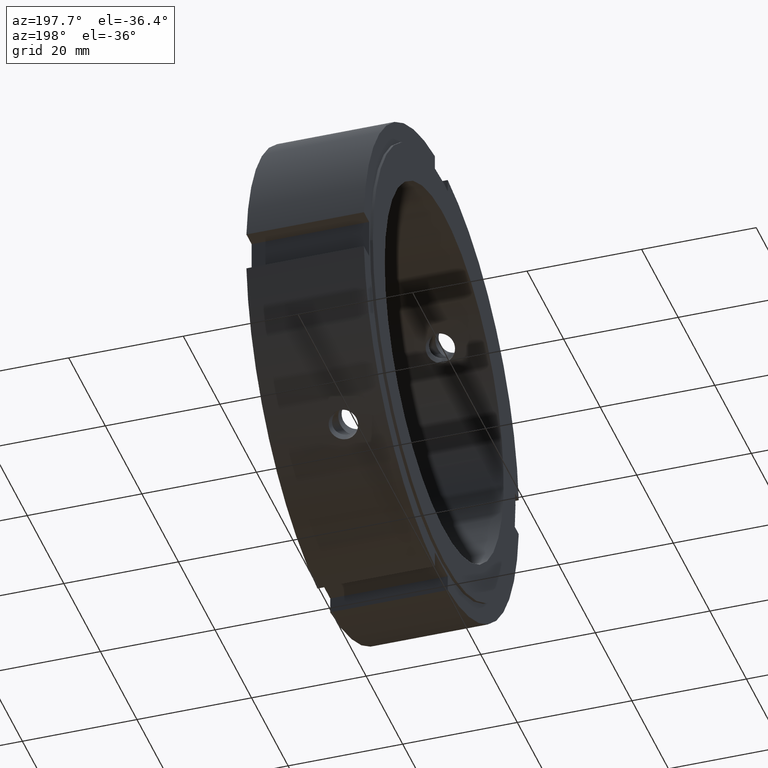
[diagram: clean part render]
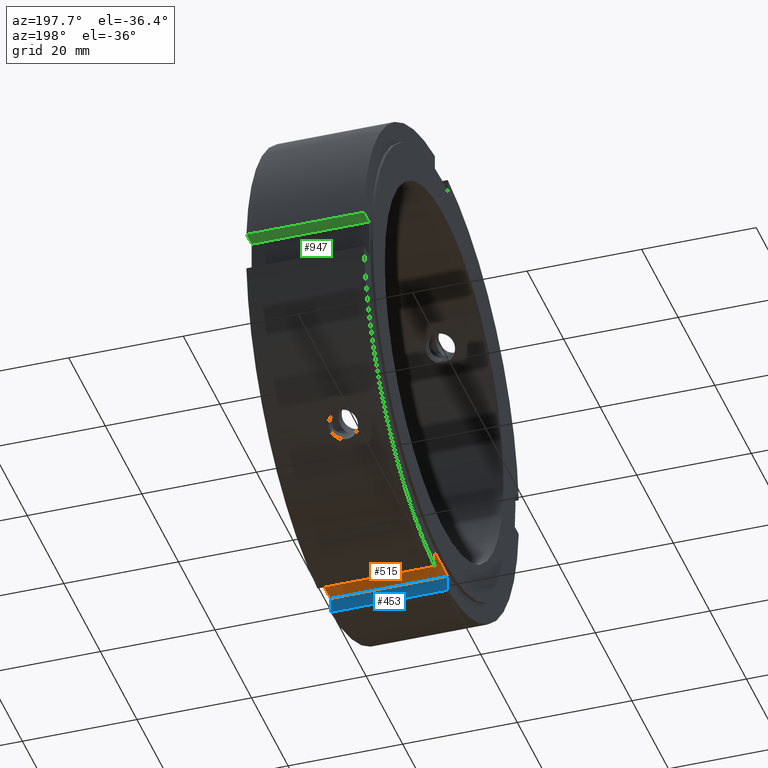
[diagram: same view with three faces highlighted in distinct colors, each labeled with its STEP entity id]
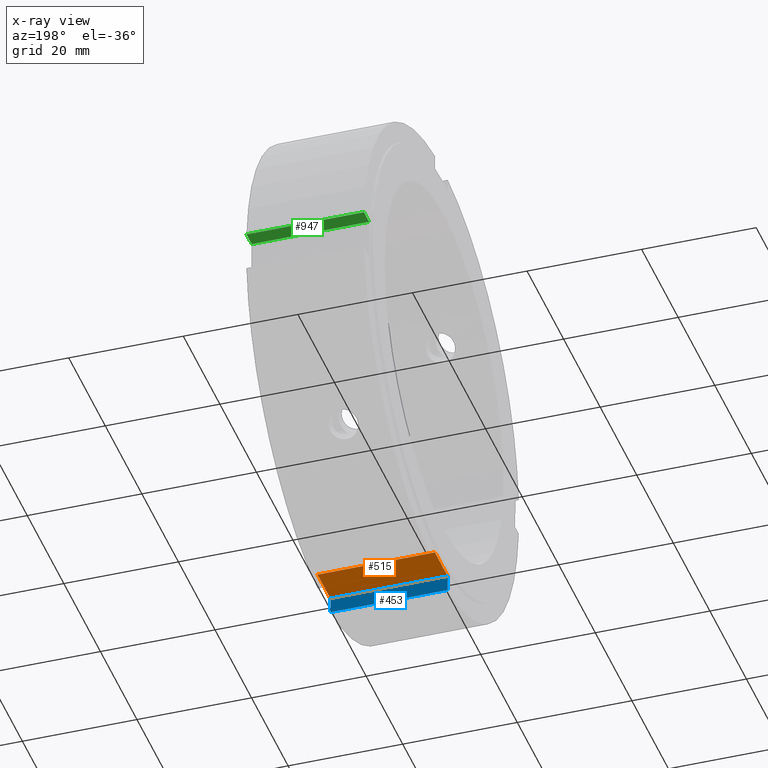
[diagram: x-ray of the same camera — body ghosted, the three highlighted faces saturated]
A machine part, auxiliary view with three faces highlighted in distinct colors.
The next image is the same camera in x-ray (body ghosted, the three faces saturated) — at least one of them is partly hidden behind the body in this view.
Their STEP definitions:

[orange] entity #515 — the highlighted planar face has unit normal (0, 0, 1).
#419=CARTESIAN_POINT('',(0.499999999999989,-3.500000000000006,-39.5));
#420=VERTEX_POINT('',#419);
#429=CARTESIAN_POINT('',(20.999999999999986,-3.500000000000006,-39.5));
#430=VERTEX_POINT('',#429);
#431=CARTESIAN_POINT('',(20.999999999999986,-3.500000000000006,-39.5));
#432=DIRECTION('',(-1.0,0.0,0.0));
#433=VECTOR('',#432,20.5);
#434=LINE('',#431,#433);
#435=EDGE_CURVE('',#430,#420,#434,.T.);
#461=CARTESIAN_POINT('',(0.499999999999989,3.499999999999992,-39.5));
#462=VERTEX_POINT('',#461);
#477=CARTESIAN_POINT('',(20.999999999999986,3.499999999999992,-39.5));
#478=VERTEX_POINT('',#477);
#485=CARTESIAN_POINT('',(20.999999999999986,3.499999999999992,-39.5));
#486=DIRECTION('',(-1.0,0.0,0.0));
#487=VECTOR('',#486,20.5);
#488=LINE('',#485,#487);
#489=EDGE_CURVE('',#478,#462,#488,.T.);
#494=CARTESIAN_POINT('',(20.999999999999986,3.499999999999992,-39.5));
#495=DIRECTION('',(0.0,0.0,1.0));
#496=DIRECTION('',(0.0,-1.0,0.0));
#497=AXIS2_PLACEMENT_3D('',#494,#495,#496);
#498=PLANE('',#497);
#499=CARTESIAN_POINT('',(0.499999999999989,3.499999999999989,-39.5));
#500=DIRECTION('',(0.0,-1.0,0.0));
#501=VECTOR('',#500,6.999999999999996);
#502=LINE('',#499,#501);
#503=EDGE_CURVE('',#462,#420,#502,.T.);
#504=ORIENTED_EDGE('',*,*,#503,.F.);
#505=ORIENTED_EDGE('',*,*,#489,.F.);
#506=CARTESIAN_POINT('',(20.999999999999986,-3.500000000000004,-39.499999999999993));
#507=DIRECTION('',(0.0,1.0,0.0));
#508=VECTOR('',#507,6.999999999999996);
#509=LINE('',#506,#508);
#510=EDGE_CURVE('',#430,#478,#509,.T.);
#511=ORIENTED_EDGE('',*,*,#510,.F.);
#512=ORIENTED_EDGE('',*,*,#435,.T.);
#513=EDGE_LOOP('',(#504,#505,#511,#512));
#514=FACE_OUTER_BOUND('',#513,.T.);
#515=ADVANCED_FACE('',(#514),#498,.F.);

[blue] entity #453 — the highlighted planar face has unit normal (0, -1, 0).
#414=CARTESIAN_POINT('',(20.999999999999986,-3.500000000000006,-39.5));
#415=DIRECTION('',(0.0,-1.0,0.0));
#416=DIRECTION('',(-1.0,0.0,0.0));
#417=AXIS2_PLACEMENT_3D('',#414,#415,#416);
#418=PLANE('',#417);
#419=CARTESIAN_POINT('',(0.499999999999989,-3.500000000000006,-39.5));
#420=VERTEX_POINT('',#419);
#421=CARTESIAN_POINT('',(0.499999999999989,-3.500000000000006,-42.355637169094742));
#422=VERTEX_POINT('',#421);
#423=CARTESIAN_POINT('',(0.499999999999989,-3.500000000000005,-39.5));
#424=DIRECTION('',(0.0,0.0,-1.0));
#425=VECTOR('',#424,2.855637169094742);
#426=LINE('',#423,#425);
#427=EDGE_CURVE('',#420,#422,#426,.T.);
#428=ORIENTED_EDGE('',*,*,#427,.F.);
#429=CARTESIAN_POINT('',(20.999999999999986,-3.500000000000006,-39.5));
#430=VERTEX_POINT('',#429);
#431=CARTESIAN_POINT('',(20.999999999999986,-3.500000000000006,-39.5));
#432=DIRECTION('',(-1.0,0.0,0.0));
#433=VECTOR('',#432,20.5);
#434=LINE('',#431,#433);
#435=EDGE_CURVE('',#430,#420,#434,.T.);
#436=ORIENTED_EDGE('',*,*,#435,.F.);
#437=CARTESIAN_POINT('',(20.999999999999986,-3.500000000000006,-42.355637169094742));
#438=VERTEX_POINT('',#437);
#439=CARTESIAN_POINT('',(20.999999999999986,-3.500000000000005,-42.355637169094742));
#440=DIRECTION('',(0.0,0.0,1.0));
#441=VECTOR('',#440,2.855637169094742);
#442=LINE('',#439,#441);
#443=EDGE_CURVE('',#438,#430,#442,.T.);
#444=ORIENTED_EDGE('',*,*,#443,.F.);
#445=CARTESIAN_POINT('',(0.499999999999989,-3.500000000000006,-42.355637169094742));
#446=DIRECTION('',(1.0,0.0,0.0));
#447=VECTOR('',#446,20.5);
#448=LINE('',#445,#447);
#449=EDGE_CURVE('',#422,#438,#448,.T.);
#450=ORIENTED_EDGE('',*,*,#449,.F.);
#451=EDGE_LOOP('',(#428,#436,#444,#450));
#452=FACE_OUTER_BOUND('',#451,.T.);
#453=ADVANCED_FACE('',(#452),#418,.F.);

[green] entity #947 — the highlighted planar face has unit normal (0, 0, 1).
#726=CARTESIAN_POINT('',(20.999999999999986,42.355637169094742,3.499999999999998));
#727=VERTEX_POINT('',#726);
#735=CARTESIAN_POINT('',(0.499999999999989,42.355637169094742,3.499999999999998));
#736=VERTEX_POINT('',#735);
#737=CARTESIAN_POINT('',(20.999999999999989,42.355637169094742,3.499999999999998));
#738=DIRECTION('',(-1.0,0.0,0.0));
#739=VECTOR('',#738,20.5);
#740=LINE('',#737,#739);
#741=EDGE_CURVE('',#727,#736,#740,.T.);
#857=CARTESIAN_POINT('',(20.999999999999986,39.5,3.499999999999999));
#858=VERTEX_POINT('',#857);
#865=CARTESIAN_POINT('',(20.999999999999986,39.5,3.499999999999999));
#866=DIRECTION('',(0.0,1.0,0.0));
#867=VECTOR('',#866,2.855637169094742);
#868=LINE('',#865,#867);
#869=EDGE_CURVE('',#858,#727,#868,.T.);
#924=CARTESIAN_POINT('',(20.999999999999986,42.5,3.499999999999998));
#925=DIRECTION('',(0.0,0.0,1.0));
#926=DIRECTION('',(1.0,0.0,0.0));
#927=AXIS2_PLACEMENT_3D('',#924,#925,#926);
#928=PLANE('',#927);
#929=CARTESIAN_POINT('',(0.499999999999989,39.5,3.499999999999999));
#930=VERTEX_POINT('',#929);
#931=CARTESIAN_POINT('',(0.499999999999989,42.355637169094742,3.499999999999999));
#932=DIRECTION('',(0.0,-1.0,0.0));
#933=VECTOR('',#932,2.855637169094742);
#934=LINE('',#931,#933);
#935=EDGE_CURVE('',#736,#930,#934,.T.);
#936=ORIENTED_EDGE('',*,*,#935,.F.);
#937=ORIENTED_EDGE('',*,*,#741,.F.);
#938=ORIENTED_EDGE('',*,*,#869,.F.);
#939=CARTESIAN_POINT('',(20.999999999999986,39.5,3.499999999999999));
#940=DIRECTION('',(-1.0,0.0,0.0));
#941=VECTOR('',#940,20.5);
#942=LINE('',#939,#941);
#943=EDGE_CURVE('',#858,#930,#942,.T.);
#944=ORIENTED_EDGE('',*,*,#943,.T.);
#945=EDGE_LOOP('',(#936,#937,#938,#944));
#946=FACE_OUTER_BOUND('',#945,.T.);
#947=ADVANCED_FACE('',(#946),#928,.F.);